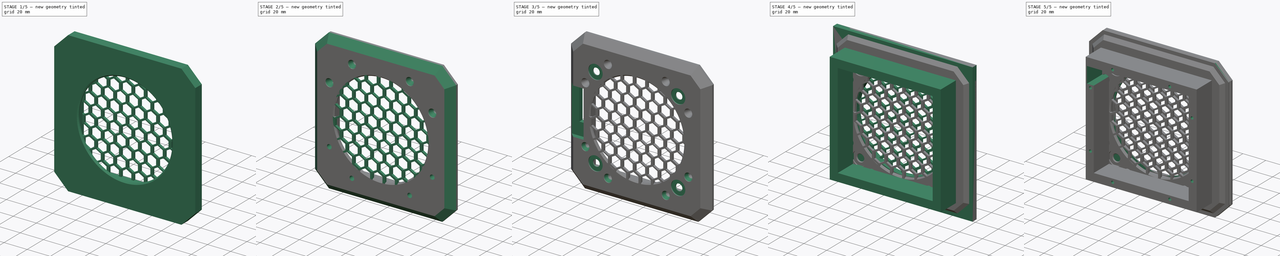
[diagram: build sequence overview — one tinted view per stage of 5, left to right]
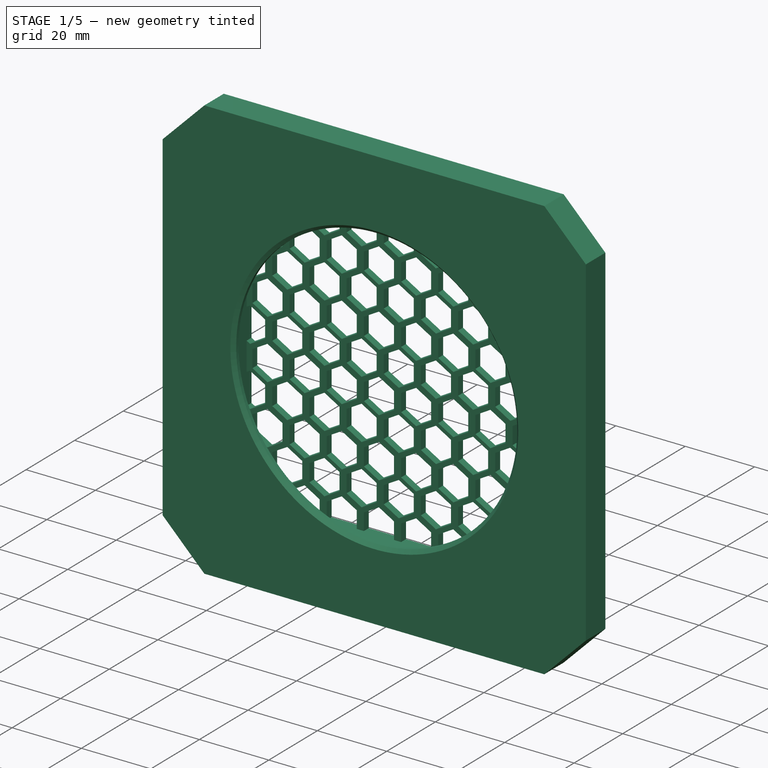
[diagram: stage 1 of 5 — iso view after this stage's code; geometry added in this stage tinted green]
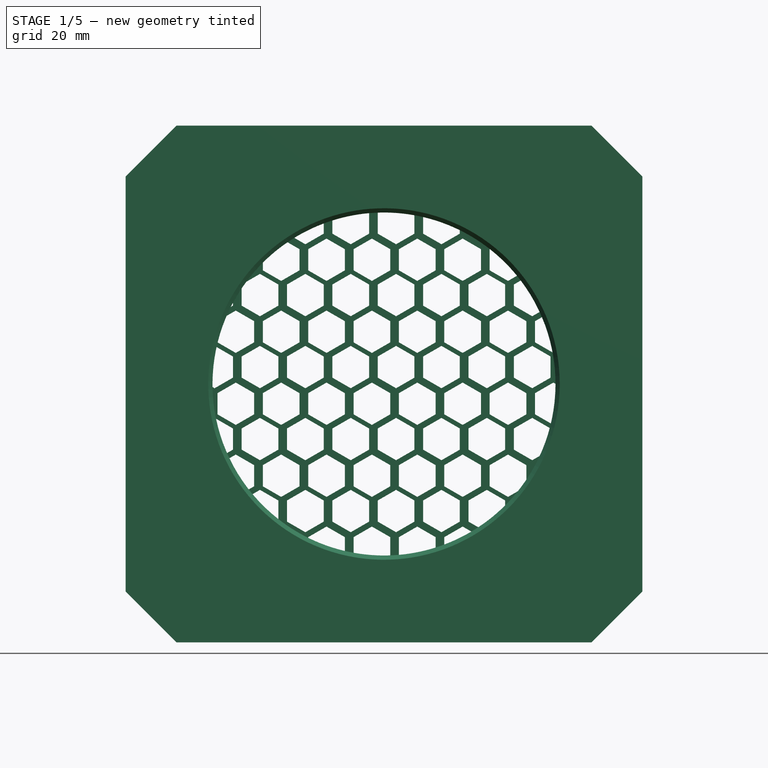
[diagram: stage 1 of 5 — front view after this stage's code; geometry added in this stage tinted green]
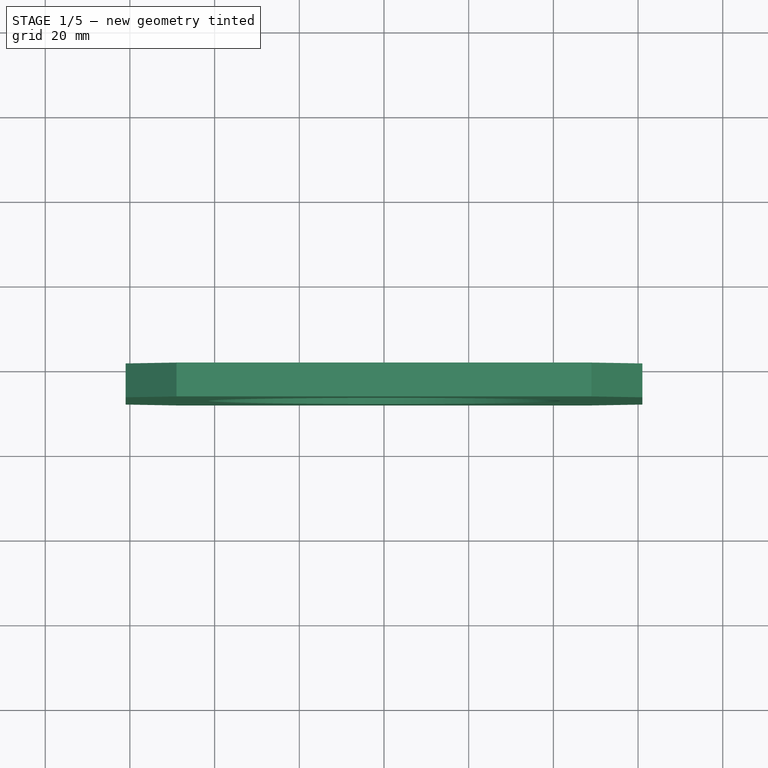
[diagram: stage 1 of 5 — top view after this stage's code; geometry added in this stage tinted green]
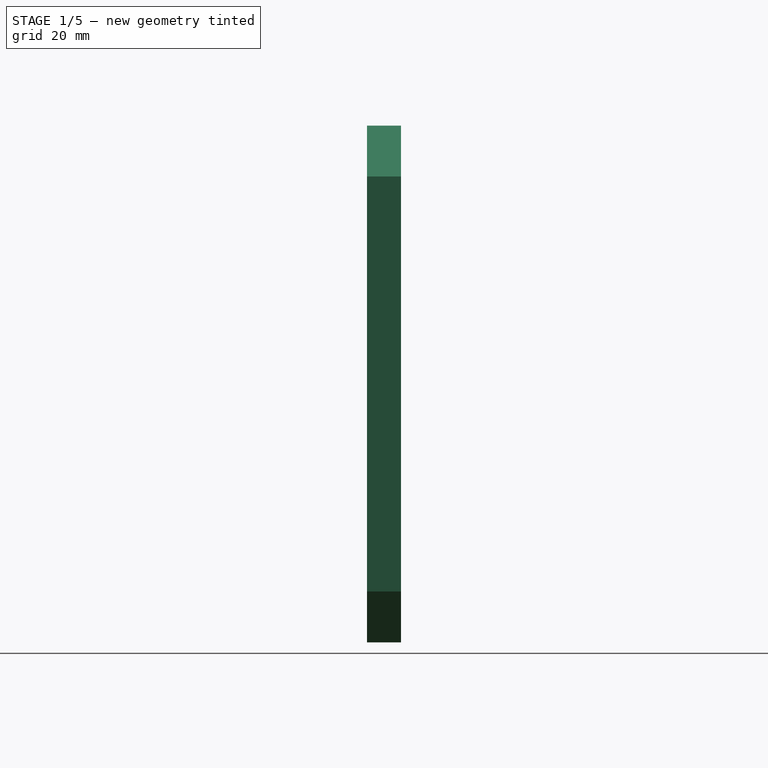
[diagram: stage 1 of 5 — right view after this stage's code; geometry added in this stage tinted green]
FCSTD DOCUMENT  (FreeCAD 1.0R39109 (Git))
Label: InnenLüfter
License: All rights reserved
LicenseURL: http://en.wikipedia.org/wiki/All_rights_reserved
objects: Sketcher::SketchObject×17, PartDesign::Chamfer×15, PartDesign::Pocket×11, PartDesign::Pad×6, PartDesign::LinearPattern×4, PartDesign::Body×4, PartDesign::MultiTransform×2, PartDesign::Boolean×2
note: 150 computed .brp shape members not serialized (recipe doc carries the construction recipe); baked Part::Feature solids carry a one-line shape summary decoded from their .brp

FEATURE [Sketcher::SketchObject] Sketch007
  ArcFitTolerance = 1e-06
  AttachmentSupport = -> [XZ_Plane002]
  FullyConstrained = true
  MakeInternals = false
  MapMode = 5
  Placement = pos=(0,0,0) rot=(1,0,0;1.5708rad)
  sketch-geometry (10):
    g0: LineSegment StartX=-41 StartY=41 StartZ=0 EndX=-41 EndY=-41 EndZ=0
    g1: LineSegment StartX=-41 StartY=-41 StartZ=0 EndX=41 EndY=-41 EndZ=0
    g2: LineSegment StartX=41 StartY=-41 StartZ=0 EndX=41 EndY=41 EndZ=0
    g3: LineSegment StartX=41 StartY=41 StartZ=0 EndX=-41 EndY=41 EndZ=0
    g4: GeomPoint [constr] X=0 Y=3e-16 Z=0
    g5: LineSegment StartX=-61 StartY=61 StartZ=0 EndX=-61 EndY=-61 EndZ=0
    g6: LineSegment StartX=-61 StartY=-61 StartZ=0 EndX=61 EndY=-61 EndZ=0
    g7: LineSegment StartX=61 StartY=-61 StartZ=0 EndX=61 EndY=61 EndZ=0
    g8: LineSegment StartX=61 StartY=61 StartZ=0 EndX=-61 EndY=61 EndZ=0
    g9: GeomPoint [constr] X=0 Y=3e-16 Z=0
  constraints (24):
    c: Coincident(g0,g1)
    c: Coincident(g1,g2)
    c: Coincident(g2,g3)
    c: Coincident(g3,g0)
    c: Vertical(g0)
    c: Vertical(g2)
    c: Horizontal(g1)
    c: Horizontal(g3)
    c: Symmetric(g2,g0,g4)
    c: Coincident(g4,g-1)
    c: Coincident(g5,g6)
    c: Coincident(g6,g7)
    c: Coincident(g7,g8)
    c: Coincident(g8,g5)
    c: Vertical(g5)
    c: Vertical(g7)
    c: Horizontal(g6)
    c: Horizontal(g8)
    c: Symmetric(g7,g5,g9)
    c: Coincident(g9,g4)
    c: DistanceX(g1,g1) = 82
    c: DistanceY(g2,g2) = 82
    c: DistanceX(g8,g8) = 122
    c: DistanceY(g5,g5) = 122
FEATURE [PartDesign::Pad] Pad003
  Direction = (0,-1,2e-16)
  Length = 8
  Length2 = 10
  Placement = pos=(0,0,0) rot=(1,0,0;1.5708rad)
  Profile = -> Sketch007
  ReferenceAxis = -> Sketch007 [N_Axis]
  Suppressed = false
  Type = 0
FEATURE [Sketcher::SketchObject] Sketch008
  ArcFitTolerance = 1e-06
  AttachmentSupport = -> [Pad003]
  FullyConstrained = true
  MakeInternals = false
  MapMode = 5
  Placement = pos=(0,-8,0) rot=(1,0,0;1.5708rad)
  sketch-geometry (6):
    g0: LineSegment StartX=-41 StartY=41 StartZ=0 EndX=-41 EndY=-41 EndZ=0
    g1: LineSegment StartX=-41 StartY=-41 StartZ=0 EndX=41 EndY=-41 EndZ=0
    g2: LineSegment StartX=41 StartY=-41 StartZ=0 EndX=41 EndY=41 EndZ=0
    g3: LineSegment StartX=41 StartY=41 StartZ=0 EndX=-41 EndY=41 EndZ=0
    g4: GeomPoint [constr] X=0 Y=0 Z=0
    g5: Circle CenterX=0 CenterY=0 CenterZ=0 NormalX=0 NormalY=0 NormalZ=1 AngleXU=0 Radius=40.5
  constraints (14):
    c: Coincident(g0,g1)
    c: Coincident(g1,g2)
    c: Coincident(g2,g3)
    c: Coincident(g3,g0)
    c: Vertical(g0)
    c: Vertical(g2)
    c: Horizontal(g1)
    c: Horizontal(g3)
    c: Symmetric(g2,g0,g4)
    c: Coincident(g4,g-1)
    c: DistanceX(g3,g3) = 82
    c: DistanceY(g0,g0) = 82
    c: Coincident(g5,g4)
    c: Diameter(g5) = 81
FEATURE [PartDesign::Pad] Pad004
  BaseFeature = -> Pad003
  Direction = (0,-1,2e-16)
  Length = 2
  Length2 = 10
  Placement = pos=(0,0,0) rot=(1,0,0;1.5708rad)
  Profile = -> Sketch008
  ReferenceAxis = -> Sketch008 [N_Axis]
  Reversed = true
  Suppressed = false
  Type = 0
FEATURE [PartDesign::Chamfer] Chamfer004
  Angle = 45
  Base = -> Pad004 [Edge29]
  BaseFeature = -> Pad004
  ChamferType = 0
  FlipDirection = false
  Placement = pos=(0,0,0) rot=(1,0,0;1.5708rad)
  Size = 1
  Size2 = 1
  SupportTransform = false
  Suppressed = false
  UseAllEdges = false
FEATURE [PartDesign::Chamfer] Chamfer005
  Angle = 45
  Base = -> Chamfer004 [Edge36,Edge41,Edge39,Edge37]
  BaseFeature = -> Chamfer004
  ChamferType = 0
  FlipDirection = false
  Placement = pos=(0,0,0) rot=(1,0,0;1.5708rad)
  Size = 12
  Size2 = 1
  SupportTransform = false
  Suppressed = false
  UseAllEdges = false
FEATURE [Sketcher::SketchObject] Sketch009
  ArcFitTolerance = 1e-06
  AttachmentSupport = -> [XZ_Plane003]
  FullyConstrained = true
  MakeInternals = false
  MapMode = 5
  Placement = pos=(0,0,0) rot=(1,0,0;1.5708rad)
  sketch-geometry (5):
    g0: LineSegment StartX=-45 StartY=45 StartZ=0 EndX=-45 EndY=-45 EndZ=0
    g1: LineSegment StartX=-45 StartY=-45 StartZ=0 EndX=45 EndY=-45 EndZ=0
    g2: LineSegment StartX=45 StartY=-45 StartZ=0 EndX=45 EndY=45 EndZ=0
    g3: LineSegment StartX=45 StartY=45 StartZ=0 EndX=-45 EndY=45 EndZ=0
    g4: GeomPoint [constr] X=0 Y=0 Z=0
  constraints (12):
    c: Coincident(g0,g1)
    c: Coincident(g1,g2)
    c: Coincident(g2,g3)
    c: Coincident(g3,g0)
    c: Vertical(g0)
    c: Vertical(g2)
    c: Horizontal(g1)
    c: Horizontal(g3)
    c: Symmetric(g2,g0,g4)
    c: Coincident(g4,g-1)
    c: DistanceX(g3,g3) = 90
    c: DistanceY(g0,g0) = 90
FEATURE [PartDesign::Pad] Pad005
  Direction = (0,-1,2e-16)
  Length = 2
  Length2 = 10
  Placement = pos=(0,0,0) rot=(1,0,0;1.5708rad)
  Profile = -> Sketch009
  ReferenceAxis = -> Sketch009 [N_Axis]
  Suppressed = false
  Type = 0
FEATURE [Sketcher::SketchObject] Sketch010
  ArcFitTolerance = 1e-06
  AttachmentSupport = -> [Pad005]
  FullyConstrained = false
  MakeInternals = false
  MapMode = 5
  Placement = pos=(0,-2,0) rot=(1,0,0;1.5708rad)
  sketch-geometry (16):
    g0: LineSegment StartX=-35.6699 StartY=35.5 StartZ=0 EndX=-35.6699 EndY=40.5 EndZ=0
    g1: LineSegment StartX=-35.6699 StartY=40.5 StartZ=0 EndX=-40 EndY=43 EndZ=0
    g2: LineSegment StartX=-40 StartY=43 StartZ=0 EndX=-44.3301 EndY=40.5 EndZ=0
    g3: LineSegment StartX=-44.3301 StartY=40.5 StartZ=0 EndX=-44.3301 EndY=35.5 EndZ=0
    g4: LineSegment StartX=-44.3301 StartY=35.5 StartZ=0 EndX=-40 EndY=33 EndZ=0
    g5: LineSegment StartX=-40 StartY=33 StartZ=0 EndX=-35.6699 EndY=35.5 EndZ=0
    g6: Circle [constr] CenterX=-40 CenterY=38 CenterZ=0 NormalX=0 NormalY=0 NormalZ=1 AngleXU=0 Radius=5
    g7: LineSegment [constr] StartX=-40 StartY=38 StartZ=0 EndX=-9.61979 EndY=38 EndZ=0
    g8: LineSegment [constr] StartX=-40 StartY=38 StartZ=0 EndX=-35 EndY=29.3397 EndZ=0
    g9: LineSegment StartX=-35 StartY=24.3397 StartZ=0 EndX=-30.6699 EndY=26.8397 EndZ=0
    g10: LineSegment StartX=-30.6699 StartY=26.8397 StartZ=0 EndX=-30.6699 EndY=31.8397 EndZ=0
    g11: LineSegment StartX=-30.6699 StartY=31.8397 StartZ=0 EndX=-35 EndY=34.3397 EndZ=0
    g12: LineSegment StartX=-35 StartY=34.3397 StartZ=0 EndX=-39.3301 EndY=31.8397 EndZ=0
    g13: LineSegment StartX=-39.3301 StartY=31.8397 StartZ=0 EndX=-39.3301 EndY=26.8397 EndZ=0
    g14: LineSegment StartX=-39.3301 StartY=26.8397 StartZ=0 EndX=-35 EndY=24.3397 EndZ=0
    g15: Circle [constr] CenterX=-35 CenterY=29.3397 CenterZ=0 NormalX=0 NormalY=0 NormalZ=1 AngleXU=0 Radius=5
  constraints (38):
    c: Coincident(g0,g1)
    c: Coincident(g1,g2)
    c: Coincident(g2,g3)
    c: Coincident(g3,g4)
    c: Coincident(g4,g5)
    c: Coincident(g5,g0)
    c: Equal(g0, g1-g5) x5
    c: PointOnObject(g0,g6)
    c: PointOnObject(g1,g6)
    c: PointOnObject(g2,g6)
    c: PointOnObject(g3,g6)
    c: PointOnObject(g4,g6)
    c: PointOnObject(g5,g6)
    c: DistanceY(g4,g1) = 10
    c: Vertical(g0)
    c: Coincident(g7,g6)
    c: Horizontal(g7)
    c: Coincident(g8,g6)
    c: Angle(g8,g7) = 1.0472
    c: Distance(g8,g8) = 10
    c: Coincident(g9,g10)
    c: Coincident(g10,g11)
    c: Coincident(g11,g12)
    c: Coincident(g12,g13)
    c: Coincident(g13,g14)
    c: Coincident(g14,g9)
    c: Equal(g9, g10-g14) x5
    c: PointOnObject(g9,g15)
    c: PointOnObject(g10,g15)
    c: PointOnObject(g11,g15)
    c: PointOnObject(g12,g15)
    c: PointOnObject(g13,g15)
    c: PointOnObject(g14,g15)
    c: Coincident(g15,g8)
    c: DistanceY(g9,g11) = 10
    c: Parallel(g5,g12)
    c: Distance(g6,g-2) = 40
    c: Distance(g6,g-1) = 38
FEATURE [PartDesign::Pocket] Pocket004
  BaseFeature = -> Pad005
  Direction = (0,1,-2e-16)
  Length = 5
  Length2 = 5
  Placement = pos=(0,0,0) rot=(1,0,0;1.5708rad)
  Profile = -> Sketch010
  ReferenceAxis = -> Sketch010 [N_Axis]
  Suppressed = false
  Type = 1
FEATURE [PartDesign::LinearPattern] LinearPattern002
  Direction = -> Sketch010 [H_Axis]
  Length = 75
  Mode = 0
  Occurrences = 8
  Offset = 10.7143
  Placement = pos=(0,0,0) rot=(1,0,0;1.5708rad)
  Suppressed = false
  TransformMode = 0
FEATURE [PartDesign::LinearPattern] LinearPattern003
  Direction = -> Z_Axis003
  Length = 68
  Mode = 0
  Occurrences = 5
  Offset = 17
  Placement = pos=(0,0,0) rot=(1,0,0;1.5708rad)
  Reversed = true
  Suppressed = false
  TransformMode = 0
FEATURE [PartDesign::MultiTransform] MultiTransform001
  BaseFeature = -> Pocket004
  Originals = -> [Pocket004]
  Placement = pos=(0,0,0) rot=(1,0,0;1.5708rad)
  Suppressed = false
  TransformMode = 0
  Transformations = -> [LinearPattern002,LinearPattern003]
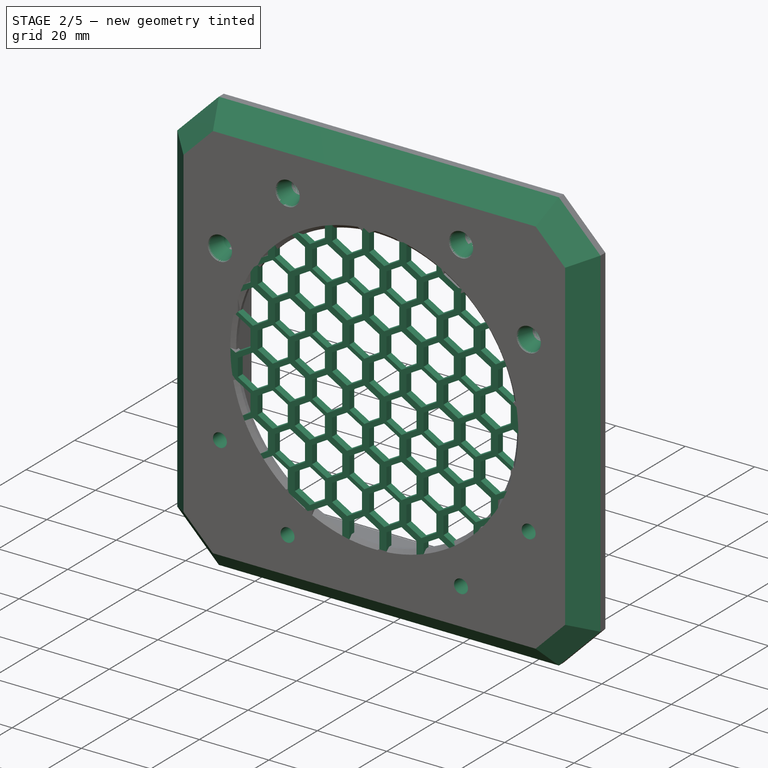
[diagram: stage 2 of 5 — iso view after this stage's code; geometry added in this stage tinted green]
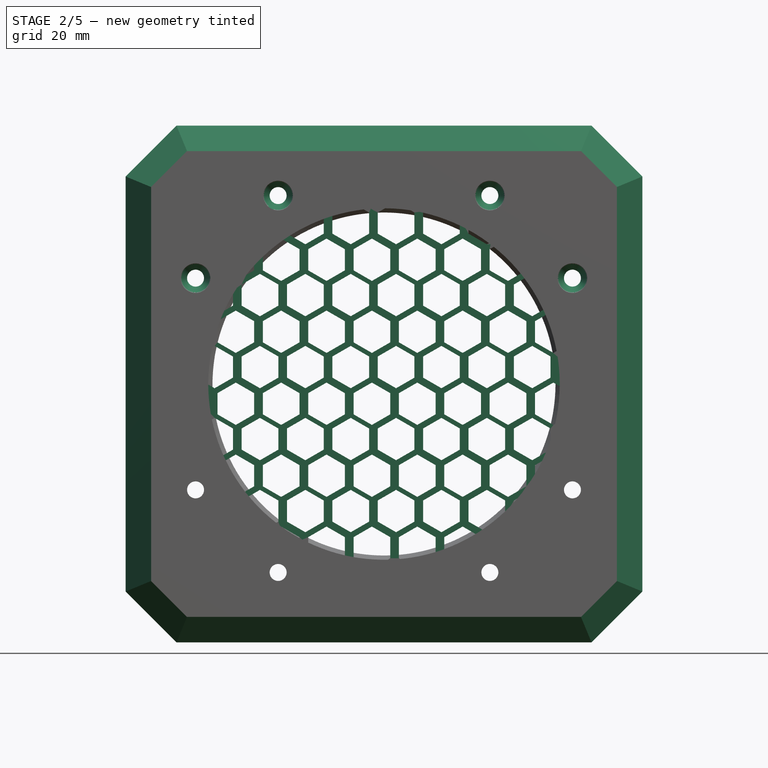
[diagram: stage 2 of 5 — front view after this stage's code; geometry added in this stage tinted green]
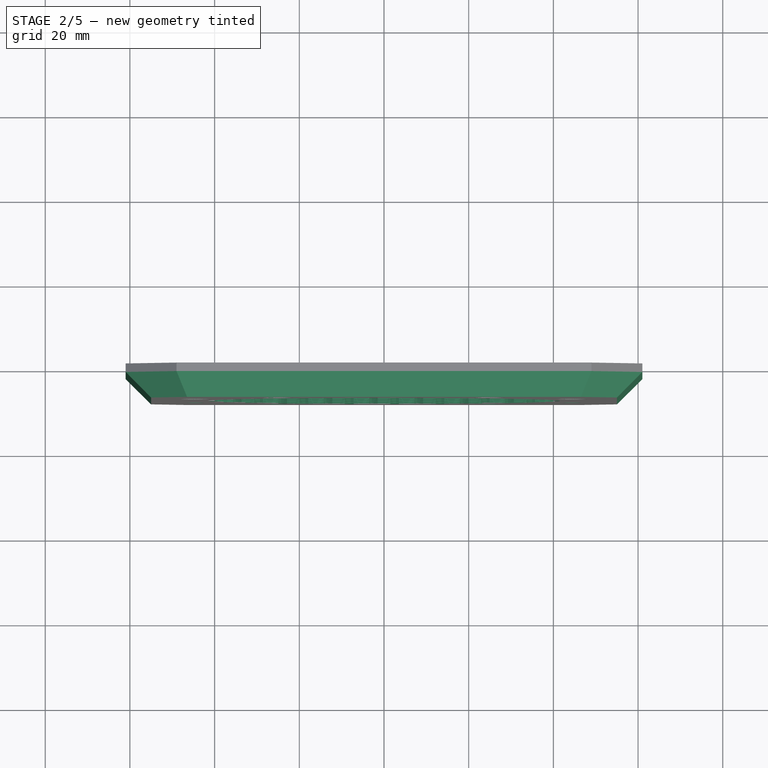
[diagram: stage 2 of 5 — top view after this stage's code; geometry added in this stage tinted green]
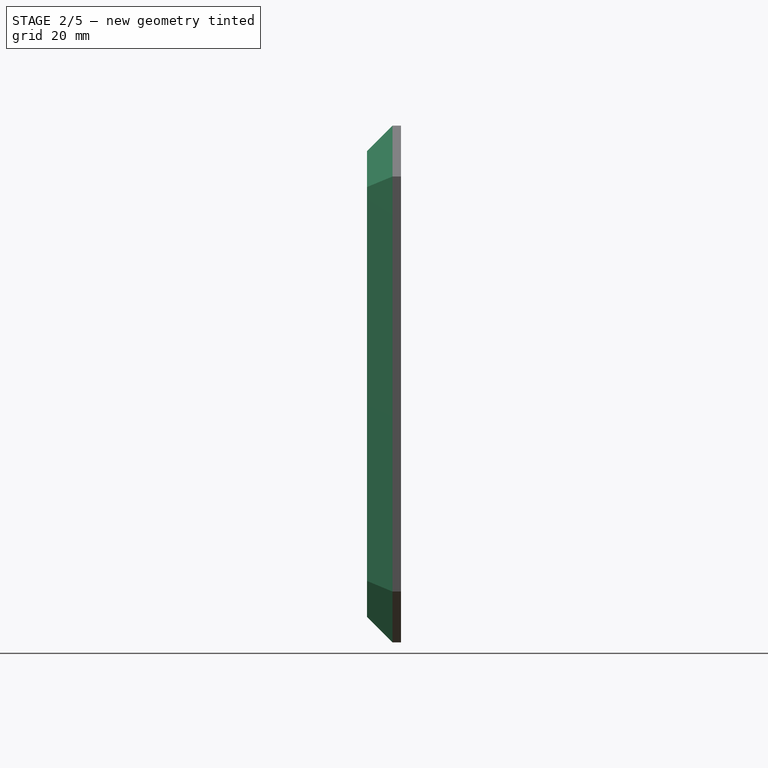
[diagram: stage 2 of 5 — right view after this stage's code; geometry added in this stage tinted green]
FEATURE [PartDesign::Chamfer] Chamfer006
  Angle = 45
  Base = -> Chamfer005 [Edge2,Edge4,Edge1,Edge3,Edge5,Edge7,Edge8,Edge6]
  BaseFeature = -> Chamfer005
  ChamferType = 0
  FlipDirection = false
  Placement = pos=(0,0,0) rot=(1,0,0;1.5708rad)
  Size = 6
  Size2 = 1
  SupportTransform = false
  Suppressed = false
  UseAllEdges = false
FEATURE [PartDesign::Body] Body003  label="Körper003"
  AllowCompound = false
  Group = -> [Sketch009,Pad005,Sketch010,Pocket004,MultiTransform001,LinearPattern002,LinearPattern003]
  Origin = -> Origin003
  Placement = pos=(0,-6,0) rot=(0,0,1;0rad)
  Tip = -> MultiTransform001
FEATURE [PartDesign::Boolean] Boolean001
  BaseFeature = -> Chamfer006
  Group = -> [Body003]
  Suppressed = false
  Type = 0
  UsePlacement = true
FEATURE [Sketcher::SketchObject] Sketch011
  ArcFitTolerance = 1e-06
  AttachmentSupport = -> [Boolean001]
  FullyConstrained = false
  MakeInternals = false
  MapMode = 5
  Placement = pos=(0,-8,0) rot=(1,0,0;1.5708rad)
  sketch-geometry (10):
    g0: Circle CenterX=-25 CenterY=44.5 CenterZ=0 NormalX=0 NormalY=0 NormalZ=1 AngleXU=0 Radius=2
    g1: Circle CenterX=25 CenterY=44.5 CenterZ=0 NormalX=0 NormalY=0 NormalZ=1 AngleXU=0 Radius=2
    g2: Circle CenterX=-44.5 CenterY=25 CenterZ=0 NormalX=0 NormalY=0 NormalZ=1 AngleXU=0 Radius=2
    g3: Circle CenterX=-44.5 CenterY=-25 CenterZ=0 NormalX=0 NormalY=0 NormalZ=1 AngleXU=0 Radius=2
    g4: Circle CenterX=-25 CenterY=-44.5 CenterZ=0 NormalX=0 NormalY=0 NormalZ=1 AngleXU=0 Radius=2
    g5: Circle CenterX=25 CenterY=-44.5 CenterZ=0 NormalX=0 NormalY=0 NormalZ=1 AngleXU=0 Radius=2
    g6: Circle CenterX=44.5 CenterY=25 CenterZ=0 NormalX=0 NormalY=0 NormalZ=1 AngleXU=0 Radius=2
    g7: Circle CenterX=44.5 CenterY=-25 CenterZ=0 NormalX=0 NormalY=0 NormalZ=1 AngleXU=0 Radius=2
    g8: LineSegment [constr] StartX=-68.7763 StartY=0 StartZ=0 EndX=99.3213 EndY=0 EndZ=0
    g9: LineSegment [constr] StartX=0 StartY=62.7277 StartZ=0 EndX=0 EndY=-84.2308 EndZ=0
  constraints (24):
    c: PointOnObject(g8,g-1)
    c: PointOnObject(g8,g-1)
    c: PointOnObject(g9,g-2)
    c: PointOnObject(g9,g-2)
    c: Symmetric(g2,g3,g8)
    c: Symmetric(g7,g6,g8)
    c: Symmetric(g0,g1,g9)
    c: Symmetric(g4,g5,g9)
    c: DistanceX(g4,g5) = 50
    c: DistanceY(g7,g6) = 50
    c: Distance(g1,g0) = 50
    c: Distance(g2,g3) = 50
    c: Distance(g3,g9) = 44.5
    c: Distance(g4,g8) = 44.5
    c: Distance(g7,g9) = 44.5
    c: Distance(g1,g8) = 44.5
    c: Equal(g0,g1)
    c: Equal(g1,g6)
    c: Equal(g6,g7)
    c: Equal(g7,g5)
    c: Equal(g5,g4)
    c: Equal(g4,g3)
    c: Equal(g3,g2)
    c: Diameter(g0) = 4
FEATURE [PartDesign::Pocket] Pocket005
  BaseFeature = -> Boolean001
  Direction = (0,1,-2e-16)
  Length = 5
  Length2 = 5
  Profile = -> Sketch011
  ReferenceAxis = -> Sketch011 [N_Axis]
  Suppressed = false
  Type = 1
FEATURE [PartDesign::Chamfer] Chamfer007
  Angle = 45
  Base = -> Pocket005 [Edge11,Edge59,Edge58,Edge57,Edge10]
  BaseFeature = -> Pocket005
  ChamferType = 1
  FlipDirection = false
  Size = 1.5
  Size2 = 4.5
  SupportTransform = false
  Suppressed = false
  UseAllEdges = false
FEATURE [PartDesign::Chamfer] Chamfer008
  Angle = 45
  Base = -> Chamfer007 [Edge5,Edge38,Edge48,Edge47,Edge36]
  BaseFeature = -> Chamfer007
  ChamferType = 1
  FlipDirection = false
  Size = 1.5
  Size2 = 4.5
  SupportTransform = false
  Suppressed = false
  UseAllEdges = false
FEATURE [PartDesign::Chamfer] Chamfer009
  Angle = 45
  Base = -> Chamfer008 [Edge6,Edge49,Edge51]
  BaseFeature = -> Chamfer008
  ChamferType = 1
  FlipDirection = false
  Size = 1.5
  Size2 = 4.5
  SupportTransform = false
  Suppressed = false
  UseAllEdges = false
FEATURE [PartDesign::Chamfer] Chamfer010
  Angle = 45
  Base = -> Chamfer009 [Edge58,Edge8,Edge80,Edge79,Edge60]
  BaseFeature = -> Chamfer009
  ChamferType = 1
  FlipDirection = false
  Size = 1.49
  Size2 = 4.5
  SupportTransform = false
  Suppressed = false
  UseAllEdges = false
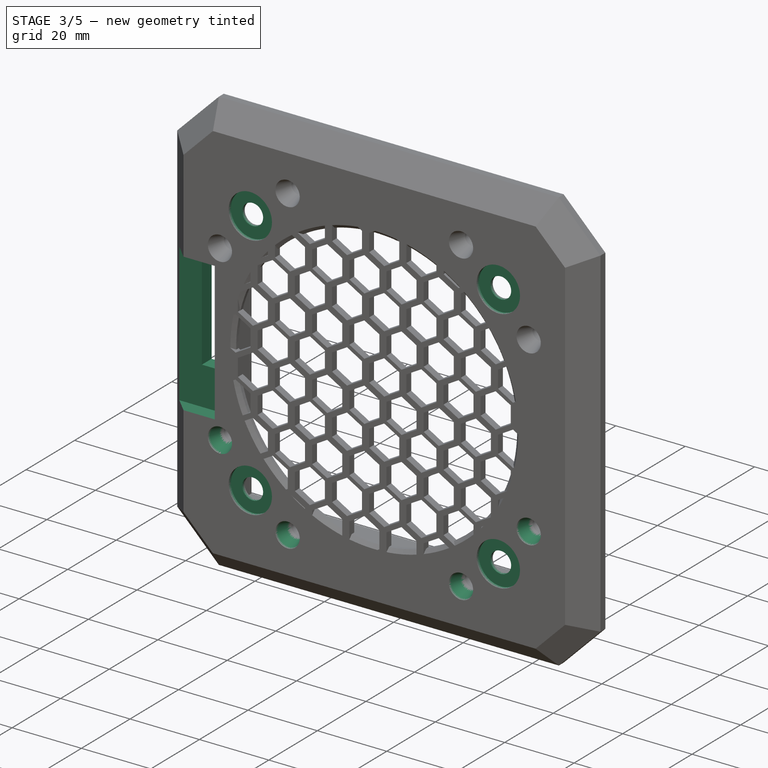
[diagram: stage 3 of 5 — iso view after this stage's code; geometry added in this stage tinted green]
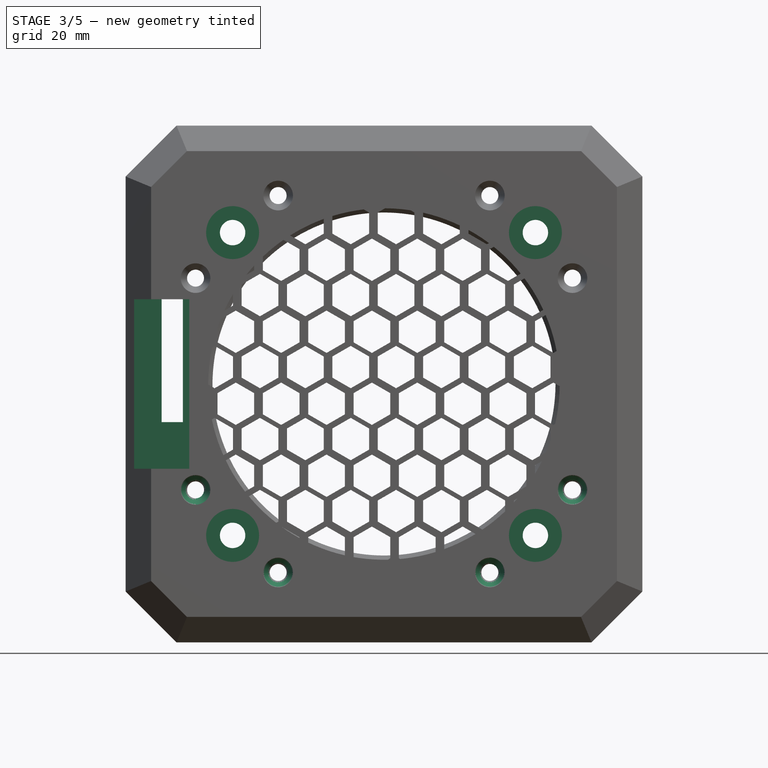
[diagram: stage 3 of 5 — front view after this stage's code; geometry added in this stage tinted green]
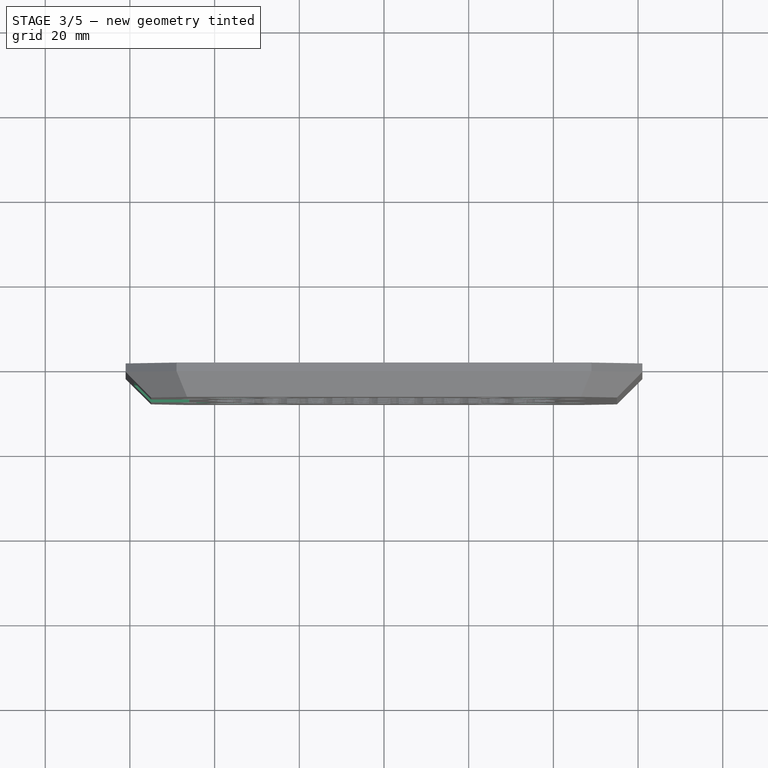
[diagram: stage 3 of 5 — top view after this stage's code; geometry added in this stage tinted green]
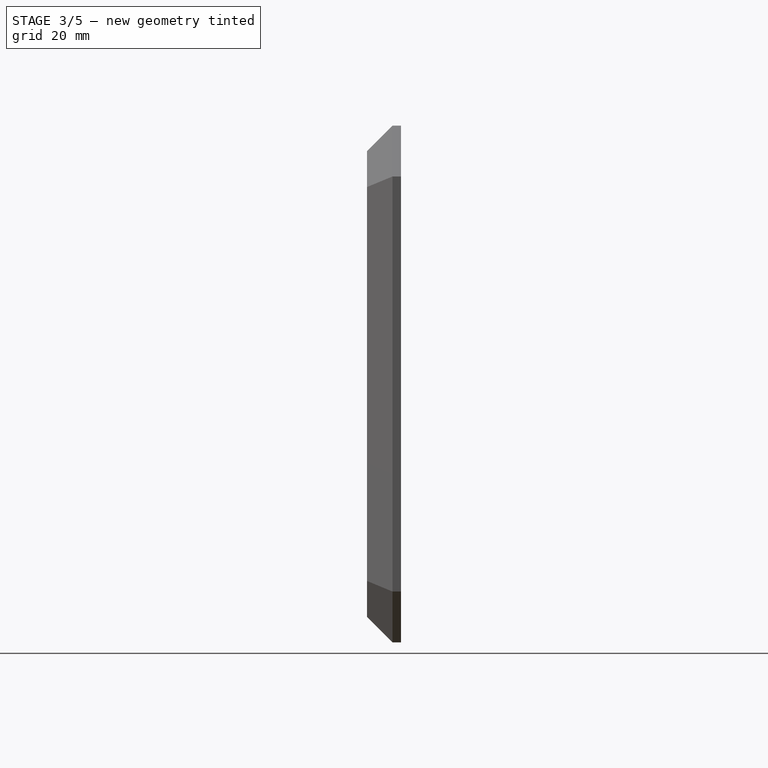
[diagram: stage 3 of 5 — right view after this stage's code; geometry added in this stage tinted green]
FEATURE [PartDesign::Chamfer] Chamfer011
  Angle = 45
  Base = -> Chamfer010 [Edge21,Edge22,Edge118,Edge175,Edge163]
  BaseFeature = -> Chamfer010
  ChamferType = 1
  FlipDirection = false
  Size = 1.5
  Size2 = 4.5
  SupportTransform = false
  Suppressed = false
  UseAllEdges = false
FEATURE [PartDesign::Chamfer] Chamfer012
  Angle = 45
  Base = -> Chamfer011 [Edge61,Edge10,Edge59]
  BaseFeature = -> Chamfer011
  ChamferType = 1
  FlipDirection = false
  Size = 1.5
  Size2 = 4.5
  SupportTransform = false
  Suppressed = false
  UseAllEdges = false
FEATURE [PartDesign::Chamfer] Chamfer013
  Angle = 45
  Base = -> Chamfer012 [Edge51,Edge49,Edge77,Edge76,Edge6]
  BaseFeature = -> Chamfer012
  ChamferType = 1
  FlipDirection = false
  Size = 1.5
  Size2 = 4.5
  SupportTransform = false
  Suppressed = false
  UseAllEdges = false
FEATURE [PartDesign::Chamfer] Chamfer014
  Angle = 45
  Base = -> Chamfer013 [Edge66,Edge64,Edge8]
  BaseFeature = -> Chamfer013
  ChamferType = 1
  FlipDirection = false
  Size = 1.5
  Size2 = 4.5
  SupportTransform = false
  Suppressed = false
  UseAllEdges = false
FEATURE [PartDesign::Body] Body  label="WandFutter"
  AllowCompound = false
  Group = -> [Sketch,Pad,Sketch001,Pad001,Sketch002,Pocket,Chamfer,Chamfer001,Chamfer002,Sketch003,Pocket001,Boolean,Sketch012,Pocket006]
  Origin = -> Origin
  Placement = pos=(0,27,0) rot=(0,0,1;0rad)
  Tip = -> Pocket006
FEATURE [Sketcher::SketchObject] Sketch013
  ArcFitTolerance = 1e-06
  AttachmentSupport = -> [Chamfer014]
  ExternalGeometry = -> [Chamfer014]
  FullyConstrained = true
  MakeInternals = false
  MapMode = 5
  Placement = pos=(0,0,0) rot=(0,0.707107,0.707107;3.14159rad)
  sketch-geometry (6):
    g0: LineSegment StartX=41 StartY=41 StartZ=0 EndX=52.5 EndY=41 EndZ=0
    g1: LineSegment StartX=52.5 StartY=41 StartZ=0 EndX=52.5 EndY=-9 EndZ=0
    g2: LineSegment StartX=52.5 StartY=-9 StartZ=0 EndX=47.5 EndY=-9 EndZ=0
    g3: LineSegment StartX=47.5 StartY=-9 StartZ=0 EndX=47.5 EndY=28 EndZ=0
    g4: LineSegment StartX=47.5 StartY=28 StartZ=0 EndX=41 EndY=28 EndZ=0
    g5: LineSegment StartX=41 StartY=28 StartZ=0 EndX=41 EndY=41 EndZ=0
  constraints (17):
    c: Coincident(g-3,g0)
    c: Horizontal(g0)
    c: Coincident(g0,g1)
    c: Vertical(g1)
    c: Coincident(g1,g2)
    c: Horizontal(g2)
    c: Coincident(g2,g3)
    c: Vertical(g3)
    c: Coincident(g3,g4)
    c: PointOnObject(g4,g-3)
    c: Coincident(g4,g5)
    c: Coincident(g5,g0)
    c: Horizontal(g4)
    c: Distance(g2,g2) = 5
    c: DistanceX(g0,g0) = 11.5
    c: DistanceY(g5,g5) = 13
    c: DistanceY(g1,g1) = 50
FEATURE [PartDesign::Pocket] Pocket007
  BaseFeature = -> Chamfer014
  Direction = (0,-1,2e-16)
  Length = 5
  Length2 = 5
  Profile = -> Sketch013
  ReferenceAxis = -> Sketch013 [N_Axis]
  Suppressed = false
  Type = 0
FEATURE [Sketcher::SketchObject] Sketch014
  ArcFitTolerance = 1e-06
  AttachmentSupport = -> [Pocket007]
  FullyConstrained = false
  MakeInternals = false
  MapMode = 5
  Placement = pos=(0,-8,0) rot=(1,0,0;1.5708rad)
  sketch-geometry (5):
    g0: LineSegment StartX=-61 StartY=20 StartZ=0 EndX=-61 EndY=-20 EndZ=0
    g1: LineSegment StartX=-61 StartY=-20 StartZ=0 EndX=-46 EndY=-20 EndZ=0
    g2: LineSegment StartX=-46 StartY=-20 StartZ=0 EndX=-46 EndY=20 EndZ=0
    g3: LineSegment StartX=-46 StartY=20 StartZ=0 EndX=-61 EndY=20 EndZ=0
    g4: LineSegment [constr] StartX=-104.583 StartY=0 StartZ=0 EndX=0 EndY=0 EndZ=0
  constraints (13):
    c: Coincident(g0,g1)
    c: Coincident(g1,g2)
    c: Coincident(g2,g3)
    c: Coincident(g3,g0)
    c: Vertical(g0)
    c: Vertical(g2)
    c: Horizontal(g1)
    c: Horizontal(g3)
    c: DistanceY(g0,g0) = 40
    c: Coincident(g4,g-1)
    c: Symmetric(g2,g1,g4)
    c: Distance(g3,g3) = 15
    c: Distance(g0,g-2) = 61
FEATURE [PartDesign::Pocket] Pocket008
  BaseFeature = -> Pocket007
  Direction = (0,1,-2e-16)
  Length = 4
  Length2 = 5
  Profile = -> Sketch014
  ReferenceAxis = -> Sketch014 [N_Axis]
  Suppressed = false
  Type = 0
FEATURE [Sketcher::SketchObject] Sketch015
  ArcFitTolerance = 1e-06
  AttachmentSupport = -> [Pocket008]
  FullyConstrained = false
  MakeInternals = false
  MapMode = 5
  Placement = pos=(0,-6,0) rot=(0,0.707107,0.707107;3.14159rad)
  sketch-geometry (7):
    g0: LineSegment [constr] StartX=0 StartY=0 StartZ=0 EndX=79.0866 EndY=0 EndZ=0
    g1: LineSegment [constr] StartX=0 StartY=0 StartZ=0 EndX=0 EndY=64.4894 EndZ=0
    g2: Circle CenterX=-35.75 CenterY=35.75 CenterZ=0 NormalX=0 NormalY=0 NormalZ=1 AngleXU=0 Radius=3
    g3: Circle CenterX=35.75 CenterY=35.75 CenterZ=0 NormalX=0 NormalY=0 NormalZ=1 AngleXU=0 Radius=3
    g4: Circle CenterX=35.75 CenterY=-35.75 CenterZ=0 NormalX=0 NormalY=0 NormalZ=1 AngleXU=0 Radius=3
    g5: Circle CenterX=-35.75 CenterY=-35.75 CenterZ=0 NormalX=0 NormalY=0 NormalZ=1 AngleXU=0 Radius=3
    g6: LineSegment [constr] StartX=0 StartY=0 StartZ=0 EndX=0 EndY=-68.1782 EndZ=0
  constraints (15):
    c: Coincident(g0,g-1)
    c: PointOnObject(g0,g-1)
    c: Coincident(g1,g0)
    c: PointOnObject(g1,g-2)
    c: Symmetric(g3,g4,g0)
    c: Symmetric(g2,g3,g1)
    c: Coincident(g6,g0)
    c: Vertical(g6)
    c: Symmetric(g5,g4,g6)
    c: DistanceY(g4,g3) = 71.5
    c: DistanceX(g5,g4) = 71.5
    c: Equal(g2,g3)
    c: Equal(g3,g4)
    c: Equal(g4,g5)
    c: Diameter(g2) = 6
FEATURE [PartDesign::Pocket] Pocket009
  BaseFeature = -> Pocket008
  Direction = (0,-1,2e-16)
  Length = 5
  Length2 = 5
  Profile = -> Sketch015
  ReferenceAxis = -> Sketch015 [N_Axis]
  Suppressed = false
  Type = 1
FEATURE [Sketcher::SketchObject] Sketch016
  ArcFitTolerance = 1e-06
  AttachmentSupport = -> [Pocket009]
  ExternalGeometry = -> [Pocket009]
  FullyConstrained = true
  MakeInternals = false
  MapMode = 5
  Placement = pos=(0,-8,0) rot=(1,0,0;1.5708rad)
  sketch-geometry (4):
    g0: Circle CenterX=-35.75 CenterY=35.75 CenterZ=0 NormalX=0 NormalY=0 NormalZ=1 AngleXU=0 Radius=6.25
    g1: Circle CenterX=35.75 CenterY=35.75 CenterZ=0 NormalX=0 NormalY=0 NormalZ=1 AngleXU=0 Radius=6.25
    g2: Circle CenterX=35.75 CenterY=-35.75 CenterZ=0 NormalX=0 NormalY=0 NormalZ=1 AngleXU=0 Radius=6.25
    g3: Circle CenterX=-35.75 CenterY=-35.75 CenterZ=0 NormalX=0 NormalY=0 NormalZ=1 AngleXU=0 Radius=6.25
  constraints (8):
    c: Coincident(g0,g-3)
    c: Coincident(g1,g-4)
    c: Coincident(g2,g-5)
    c: Coincident(g3,g-6)
    c: Equal(g0,g1)
    c: Equal(g1,g2)
    c: Equal(g2,g3)
    c: Diameter(g0) = 12.5
FEATURE [PartDesign::Pocket] Pocket010
  BaseFeature = -> Pocket009
  Direction = (0,1,-2e-16)
  Length = 1
  Length2 = 5
  Profile = -> Sketch016
  ReferenceAxis = -> Sketch016 [N_Axis]
  Suppressed = false
  Type = 0
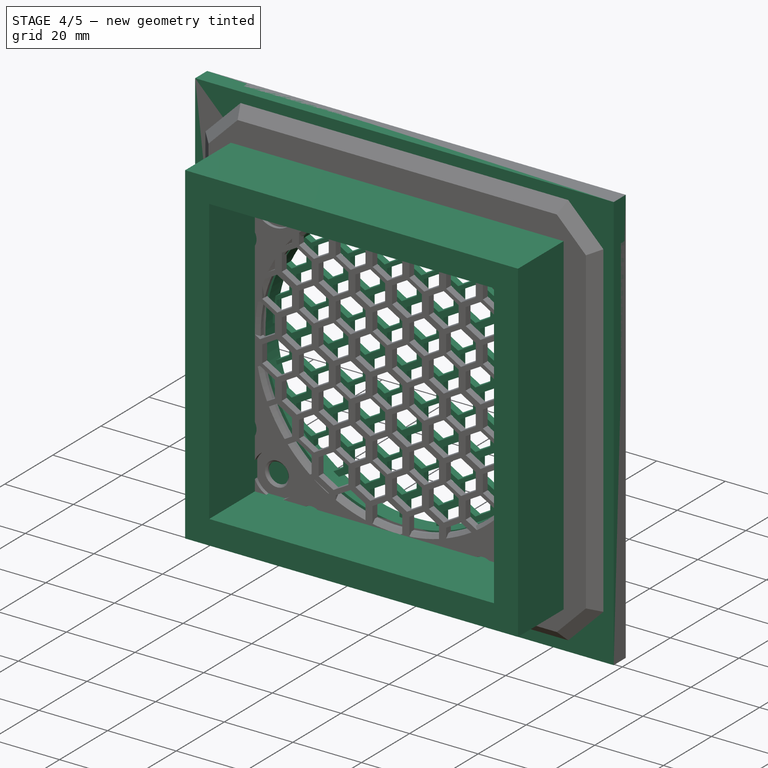
[diagram: stage 4 of 5 — iso view after this stage's code; geometry added in this stage tinted green]
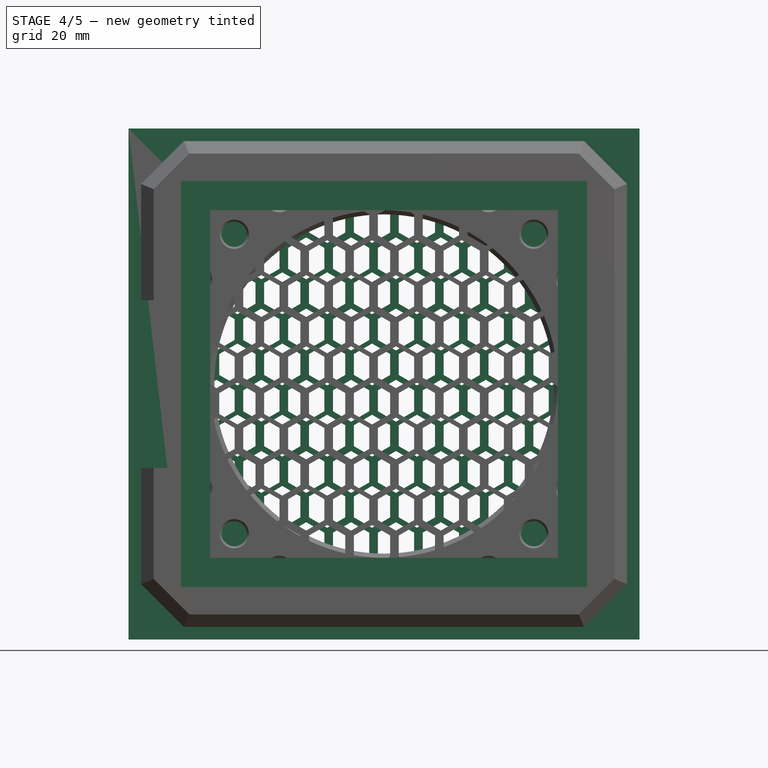
[diagram: stage 4 of 5 — front view after this stage's code; geometry added in this stage tinted green]
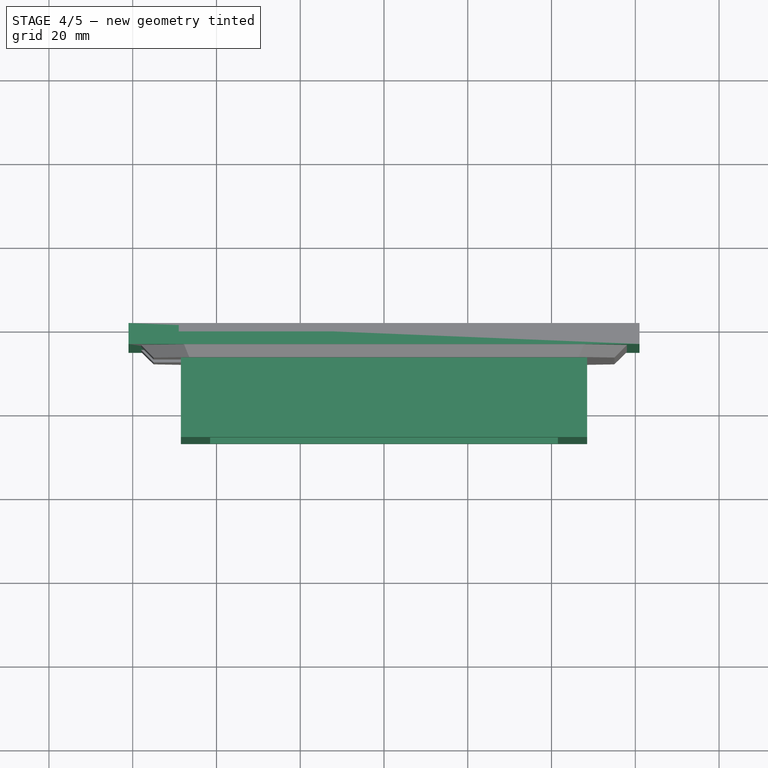
[diagram: stage 4 of 5 — top view after this stage's code; geometry added in this stage tinted green]
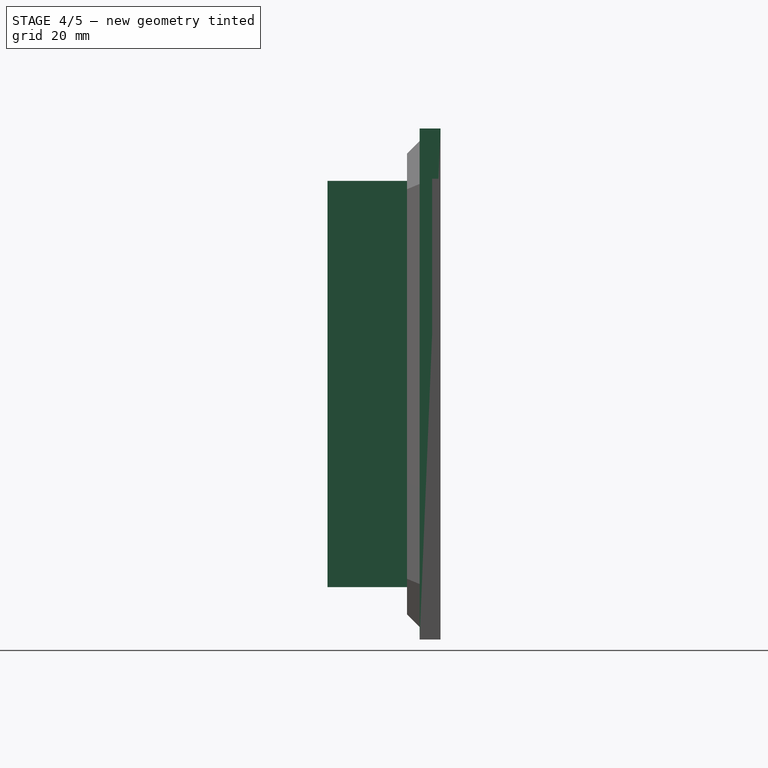
[diagram: stage 4 of 5 — right view after this stage's code; geometry added in this stage tinted green]
FEATURE [Sketcher::SketchObject] Sketch
  ArcFitTolerance = 1e-06
  AttachmentSupport = -> [XZ_Plane]
  FullyConstrained = false
  MakeInternals = false
  MapMode = 5
  Placement = pos=(0,0,0) rot=(1,0,0;1.5708rad)
  sketch-geometry (10):
    g0: GeomPoint [constr] X=-3e-16 Y=1e-16 Z=0
    g1: GeomPoint [constr] X=-3e-16 Y=1e-16 Z=0
    g2: LineSegment StartX=-61 StartY=61 StartZ=0 EndX=-61 EndY=-61 EndZ=0
    g3: LineSegment StartX=-61 StartY=-61 StartZ=0 EndX=61 EndY=-61 EndZ=0
    g4: LineSegment StartX=61 StartY=-61 StartZ=0 EndX=61 EndY=61 EndZ=0
    g5: LineSegment StartX=61 StartY=61 StartZ=0 EndX=-61 EndY=61 EndZ=0
    g6: GeomPoint [constr] X=-3e-16 Y=1e-16 Z=0
    g7: Circle CenterX=-3e-16 CenterY=1e-16 CenterZ=0 NormalX=0 NormalY=0 NormalZ=1 AngleXU=0 Radius=40.5
    g8: LineSegment [constr] StartX=0 StartY=71.7212 StartZ=0 EndX=0 EndY=-69.7412 EndZ=0
    g9: LineSegment [constr] StartX=-109.384 StartY=0 StartZ=0 EndX=109.384 EndY=0 EndZ=0
  constraints (20):
    c: Coincident(g0,g-1)
    c: Coincident(g1,g0)
    c: Coincident(g2,g3)
    c: Coincident(g3,g4)
    c: Coincident(g4,g5)
    c: Coincident(g5,g2)
    c: Vertical(g2)
    c: Vertical(g4)
    c: Horizontal(g3)
    c: Horizontal(g5)
    c: Symmetric(g4,g2,g6)
    c: Coincident(g6,g0)
    c: Coincident(g7,g0)
    c: PointOnObject(g8,g-2)
    c: PointOnObject(g8,g-2)
    c: PointOnObject(g9,g-1)
    c: PointOnObject(g9,g-1)
    c: Diameter(g7) = 81
    c: DistanceX(g5,g5) = 122
    c: DistanceY(g4,g4) = 122
FEATURE [PartDesign::Pad] Pad
  Direction = (0,-1,2e-16)
  Length = 5
  Length2 = 10
  Placement = pos=(0,0,0) rot=(1,0,0;1.5708rad)
  Profile = -> Sketch
  ReferenceAxis = -> Sketch [N_Axis]
  Suppressed = false
  Type = 0
FEATURE [Sketcher::SketchObject] Sketch001
  ArcFitTolerance = 1e-06
  AttachmentSupport = -> [Pad]
  FullyConstrained = true
  MakeInternals = false
  MapMode = 5
  Placement = pos=(0,-5,0) rot=(1,0,0;1.5708rad)
  sketch-geometry (10):
    g0: LineSegment StartX=-41.5 StartY=41.5 StartZ=0 EndX=-41.5 EndY=-41.5 EndZ=0
    g1: LineSegment StartX=-41.5 StartY=-41.5 StartZ=0 EndX=41.5 EndY=-41.5 EndZ=0
    g2: LineSegment StartX=41.5 StartY=-41.5 StartZ=0 EndX=41.5 EndY=41.5 EndZ=0
    g3: LineSegment StartX=41.5 StartY=41.5 StartZ=0 EndX=-41.5 EndY=41.5 EndZ=0
    g4: GeomPoint [constr] X=0 Y=0 Z=0
    g5: LineSegment StartX=-48.5 StartY=48.5 StartZ=0 EndX=-48.5 EndY=-48.5 EndZ=0
    g6: LineSegment StartX=-48.5 StartY=-48.5 StartZ=0 EndX=48.5 EndY=-48.5 EndZ=0
    g7: LineSegment StartX=48.5 StartY=-48.5 StartZ=0 EndX=48.5 EndY=48.5 EndZ=0
    g8: LineSegment StartX=48.5 StartY=48.5 StartZ=0 EndX=-48.5 EndY=48.5 EndZ=0
    g9: GeomPoint [constr] X=0 Y=0 Z=0
  constraints (24):
    c: Coincident(g0,g1)
    c: Coincident(g1,g2)
    c: Coincident(g2,g3)
    c: Coincident(g3,g0)
    c: Vertical(g0)
    c: Vertical(g2)
    c: Horizontal(g1)
    c: Horizontal(g3)
    c: Symmetric(g2,g0,g4)
    c: Coincident(g4,g-1)
    c: Coincident(g5,g6)
    c: Coincident(g6,g7)
    c: Coincident(g7,g8)
    c: Coincident(g8,g5)
    c: Vertical(g5)
    c: Vertical(g7)
    c: Horizontal(g6)
    c: Horizontal(g8)
    c: Symmetric(g7,g5,g9)
    c: Coincident(g9,g4)
    c: DistanceX(g3,g3) = 83
    c: DistanceY(g2,g2) = 83
    c: Distance(g2,g8) = 7
    c: Distance(g1,g7) = 7
FEATURE [PartDesign::Pad] Pad001
  BaseFeature = -> Pad
  Direction = (0,-1,2e-16)
  Length = 22
  Length2 = 10
  Placement = pos=(0,0,0) rot=(1,0,0;1.5708rad)
  Profile = -> Sketch001
  ReferenceAxis = -> Sketch001 [N_Axis]
  Suppressed = false
  Type = 0
FEATURE [Sketcher::SketchObject] Sketch004
  ArcFitTolerance = 1e-06
  AttachmentSupport = -> [XZ_Plane001]
  FullyConstrained = true
  MakeInternals = false
  MapMode = 5
  Placement = pos=(0,0,0) rot=(1,0,0;1.5708rad)
  sketch-geometry (5):
    g0: LineSegment StartX=-45 StartY=-45 StartZ=0 EndX=45 EndY=-45 EndZ=0
    g1: LineSegment StartX=45 StartY=-45 StartZ=0 EndX=45 EndY=45 EndZ=0
    g2: LineSegment StartX=45 StartY=45 StartZ=0 EndX=-45 EndY=45 EndZ=0
    g3: LineSegment StartX=-45 StartY=45 StartZ=0 EndX=-45 EndY=-45 EndZ=0
    g4: GeomPoint [constr] X=0 Y=0 Z=0
  constraints (12):
    c: Coincident(g0,g1)
    c: Coincident(g1,g2)
    c: Coincident(g2,g3)
    c: Coincident(g3,g0)
    c: Horizontal(g0)
    c: Horizontal(g2)
    c: Vertical(g1)
    c: Vertical(g3)
    c: Symmetric(g2,g0,g4)
    c: Distance(g1,g3) = 90
    c: Distance(g0,g2) = 90
    c: Coincident(g4,g-1)
FEATURE [PartDesign::Pad] Pad002
  Direction = (0,-1,2e-16)
  Length = 2
  Length2 = 10
  Placement = pos=(0,0,0) rot=(1,0,0;1.5708rad)
  Profile = -> Sketch004
  ReferenceAxis = -> Sketch004 [N_Axis]
  Suppressed = false
  Type = 0
FEATURE [Sketcher::SketchObject] Sketch005
  ArcFitTolerance = 1e-06
  AttachmentSupport = -> [Pad002]
  FullyConstrained = false
  MakeInternals = false
  MapMode = 5
  Placement = pos=(0,0,0) rot=(-1,0,0;1.5708rad)
  sketch-geometry (16):
    g0: LineSegment StartX=-40 StartY=33 StartZ=0 EndX=-35.6699 EndY=35.5 EndZ=0
    g1: LineSegment StartX=-35.6699 StartY=35.5 StartZ=0 EndX=-35.6699 EndY=40.5 EndZ=0
    g2: LineSegment StartX=-35.6699 StartY=40.5 StartZ=0 EndX=-40 EndY=43 EndZ=0
    g3: LineSegment StartX=-40 StartY=43 StartZ=0 EndX=-44.3301 EndY=40.5 EndZ=0
    g4: LineSegment StartX=-44.3301 StartY=40.5 StartZ=0 EndX=-44.3301 EndY=35.5 EndZ=0
    g5: LineSegment StartX=-44.3301 StartY=35.5 StartZ=0 EndX=-40 EndY=33 EndZ=0
    g6: Circle [constr] CenterX=-40 CenterY=38 CenterZ=0 NormalX=0 NormalY=0 NormalZ=1 AngleXU=0 Radius=5
    g7: LineSegment [constr] StartX=-40 StartY=38 StartZ=0 EndX=-10.283 EndY=38 EndZ=0
    g8: LineSegment [constr] StartX=-40 StartY=38 StartZ=0 EndX=-35 EndY=29.3397 EndZ=0
    g9: LineSegment StartX=-35 StartY=24.3397 StartZ=0 EndX=-30.6699 EndY=26.8397 EndZ=0
    g10: LineSegment StartX=-30.6699 StartY=26.8397 StartZ=0 EndX=-30.6699 EndY=31.8397 EndZ=0
    g11: LineSegment StartX=-30.6699 StartY=31.8397 StartZ=0 EndX=-35 EndY=34.3397 EndZ=0
    g12: LineSegment StartX=-35 StartY=34.3397 StartZ=0 EndX=-39.3301 EndY=31.8397 EndZ=0
    g13: LineSegment StartX=-39.3301 StartY=31.8397 StartZ=0 EndX=-39.3301 EndY=26.8397 EndZ=0
    g14: LineSegment StartX=-39.3301 StartY=26.8397 StartZ=0 EndX=-35 EndY=24.3397 EndZ=0
    g15: Circle [constr] CenterX=-35 CenterY=29.3397 CenterZ=0 NormalX=0 NormalY=0 NormalZ=1 AngleXU=0 Radius=5
  constraints (38):
    c: Coincident(g0,g1)
    c: Coincident(g1,g2)
    c: Coincident(g2,g3)
    c: Coincident(g3,g4)
    c: Coincident(g4,g5)
    c: Coincident(g5,g0)
    c: Equal(g0, g1-g5) x5
    c: PointOnObject(g0,g6)
    c: PointOnObject(g1,g6)
    c: PointOnObject(g2,g6)
    c: PointOnObject(g3,g6)
    c: PointOnObject(g4,g6)
    c: PointOnObject(g5,g6)
    c: Coincident(g7,g6)
    c: Horizontal(g7)
    c: Coincident(g8,g6)
    c: Vertical(g4)
    c: Angle(g8,g7) = 1.0472
    c: Distance(g8,g8) = 10
    c: Coincident(g9,g10)
    c: Coincident(g10,g11)
    c: Coincident(g11,g12)
    c: Coincident(g12,g13)
    c: Coincident(g13,g14)
    c: Coincident(g14,g9)
    c: Equal(g9, g10-g14) x5
    c: PointOnObject(g9,g15)
    c: PointOnObject(g10,g15)
    c: PointOnObject(g11,g15)
    c: PointOnObject(g12,g15)
    c: PointOnObject(g13,g15)
    c: PointOnObject(g14,g15)
    c: Coincident(g15,g8)
    c: DistanceY(g9,g11) = 10
    c: DistanceY(g0,g2) = 10
    c: Parallel(g12,g0)
    c: Distance(g6,g-2) = 40
    c: Distance(g6,g-1) = 38
FEATURE [PartDesign::Pocket] Pocket002
  BaseFeature = -> Pad002
  Direction = (0,-1,-2e-16)
  Length = 5
  Length2 = 5
  Placement = pos=(0,0,0) rot=(1,0,0;1.5708rad)
  Profile = -> Sketch005
  ReferenceAxis = -> Sketch005 [N_Axis]
  Suppressed = false
  Type = 1
FEATURE [PartDesign::LinearPattern] LinearPattern
  Direction = -> Sketch005 [H_Axis]
  Length = 75
  Mode = 0
  Occurrences = 8
  Offset = 10.7143
  Placement = pos=(0,0,0) rot=(1,0,0;1.5708rad)
  Suppressed = false
  TransformMode = 0
FEATURE [PartDesign::LinearPattern] LinearPattern001
  Direction = -> Z_Axis001
  Length = 68
  Mode = 0
  Occurrences = 5
  Offset = 17
  Placement = pos=(0,0,0) rot=(1,0,0;1.5708rad)
  Suppressed = false
  TransformMode = 0
FEATURE [PartDesign::MultiTransform] MultiTransform
  BaseFeature = -> Pocket002
  Originals = -> [Pocket002]
  Placement = pos=(0,0,0) rot=(1,0,0;1.5708rad)
  Suppressed = false
  TransformMode = 0
  Transformations = -> [LinearPattern,LinearPattern001]
FEATURE [PartDesign::Chamfer] Chamfer015
  Angle = 45
  Base = -> Pocket010 [Edge1791,Edge1778,Edge926,Edge1780]
  BaseFeature = -> Pocket010
  ChamferType = 0
  FlipDirection = false
  Size = 0.5
  Size2 = 1
  SupportTransform = false
  Suppressed = false
  UseAllEdges = false
FEATURE [Sketcher::SketchObject] Sketch017
  ArcFitTolerance = 1e-06
  AttachmentSupport = -> [Chamfer015]
  ExternalGeometry = -> [Chamfer015]
  FullyConstrained = false
  MakeInternals = false
  MapMode = 5
  Placement = pos=(0,-4,0) rot=(1,0,0;1.5708rad)
  sketch-geometry (3):
    g0: Circle CenterX=-56 CenterY=12.5 CenterZ=0 NormalX=0 NormalY=0 NormalZ=1 AngleXU=0 Radius=1.325
    g1: Circle CenterX=-56 CenterY=-12.5 CenterZ=0 NormalX=0 NormalY=0 NormalZ=1 AngleXU=0 Radius=1.325
    g2: LineSegment [constr] StartX=0 StartY=0 StartZ=0 EndX=-78.0742 EndY=0 EndZ=0
  constraints (7):
    c: Coincident(g2,g-1)
    c: PointOnObject(g2,g-1)
    c: Symmetric(g0,g1,g2)
    c: DistanceY(g1,g0) = 25
    c: Distance(g0,g-3) = 10
    c: Equal(g0,g1)
    c: Diameter(g0) = 2.65
FEATURE [PartDesign::Pocket] Pocket011
  BaseFeature = -> Chamfer015
  Direction = (0,1,-2e-16)
  Length = 5
  Length2 = 5
  Profile = -> Sketch017
  ReferenceAxis = -> Sketch017 [N_Axis]
  Suppressed = false
  Type = 1
FEATURE [PartDesign::Body] Body002  label="LüfterHalter"
  AllowCompound = false
  Group = -> [Sketch007,Pad003,Sketch008,Pad004,Chamfer004,Chamfer005,Chamfer006,Boolean001,Sketch011,Pocket005,Chamfer007,Chamfer008,Chamfer009,Chamfer010,Chamfer011,Chamfer012,Chamfer013,Chamfer014,Sketch013,Pocket007,Sketch014,Pocket008,Sketch015,Pocket009,Sketch016,Pocket010,Chamfer015,Sketch017,Pocket011]
  Origin = -> Origin002
  Tip = -> Pocket011
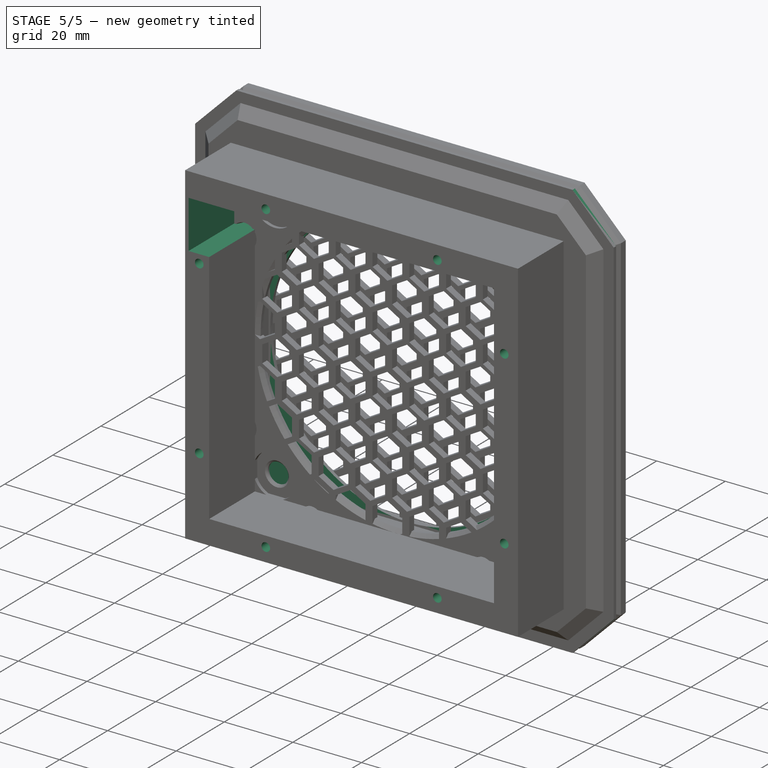
[diagram: stage 5 of 5 — iso view after this stage's code; geometry added in this stage tinted green]
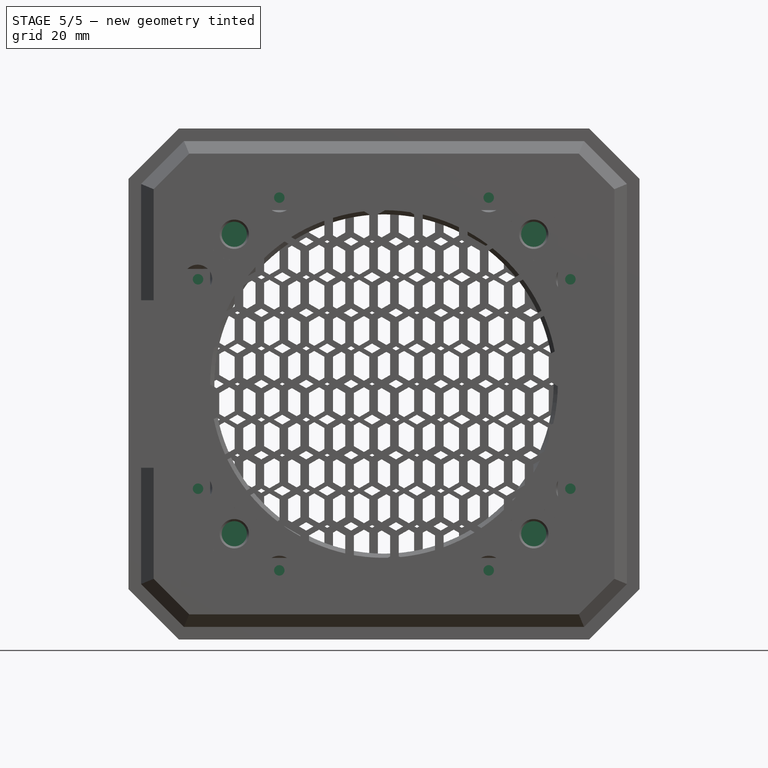
[diagram: stage 5 of 5 — front view after this stage's code; geometry added in this stage tinted green]
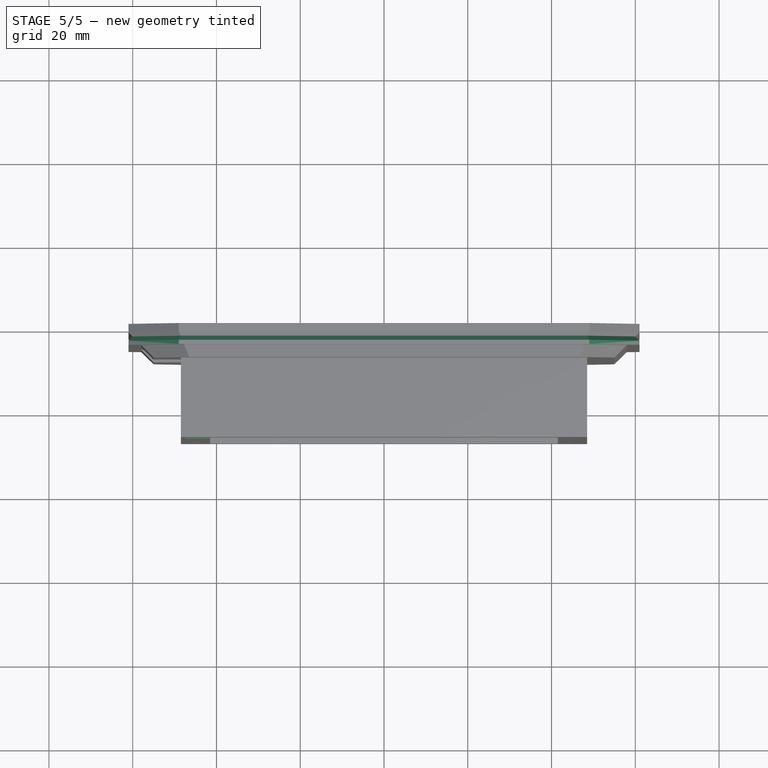
[diagram: stage 5 of 5 — top view after this stage's code; geometry added in this stage tinted green]
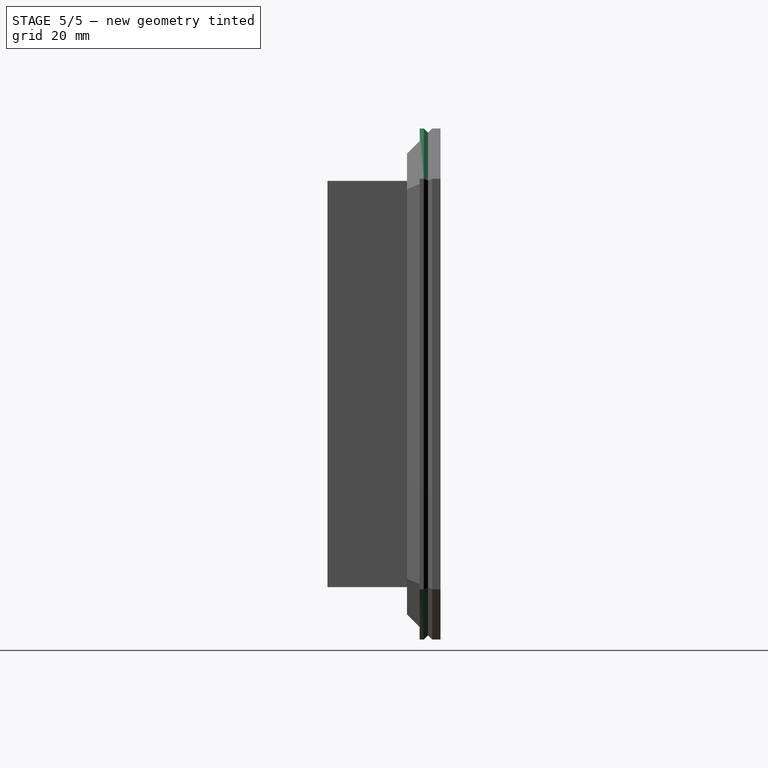
[diagram: stage 5 of 5 — right view after this stage's code; geometry added in this stage tinted green]
FEATURE [Sketcher::SketchObject] Sketch002
  ArcFitTolerance = 1e-06
  AttachmentSupport = -> [Pad001]
  FullyConstrained = true
  MakeInternals = false
  MapMode = 5
  Placement = pos=(0,-5,0) rot=(1,0,0;1.5708rad)
  sketch-geometry (6):
    g0: Circle CenterX=0 CenterY=0 CenterZ=0 NormalX=0 NormalY=0 NormalZ=1 AngleXU=0 Radius=40.5
    g1: LineSegment StartX=-41.5 StartY=41.5 StartZ=0 EndX=-41.5 EndY=-41.5 EndZ=0
    g2: LineSegment StartX=-41.5 StartY=-41.5 StartZ=0 EndX=41.5 EndY=-41.5 EndZ=0
    g3: LineSegment StartX=41.5 StartY=-41.5 StartZ=0 EndX=41.5 EndY=41.5 EndZ=0
    g4: LineSegment StartX=41.5 StartY=41.5 StartZ=0 EndX=-41.5 EndY=41.5 EndZ=0
    g5: GeomPoint [constr] X=0 Y=0 Z=0
  constraints (14):
    c: Coincident(g0,g-1)
    c: Coincident(g1,g2)
    c: Coincident(g2,g3)
    c: Coincident(g3,g4)
    c: Coincident(g4,g1)
    c: Vertical(g1)
    c: Vertical(g3)
    c: Horizontal(g2)
    c: Horizontal(g4)
    c: Symmetric(g3,g1,g5)
    c: Coincident(g5,g0)
    c: Diameter(g0) = 81
    c: DistanceY(g3,g3) = 83
    c: DistanceX(g4,g4) = 83
FEATURE [PartDesign::Pocket] Pocket
  BaseFeature = -> Pad001
  Direction = (0,1,-2e-16)
  Length = 2
  Length2 = 5
  Placement = pos=(0,0,0) rot=(1,0,0;1.5708rad)
  Profile = -> Sketch002
  ReferenceAxis = -> Sketch002 [N_Axis]
  Suppressed = false
  Type = 0
FEATURE [PartDesign::Chamfer] Chamfer
  Angle = 45
  Base = -> Pocket [Edge1,Edge2,Edge8,Edge5]
  BaseFeature = -> Pocket
  ChamferType = 0
  FlipDirection = false
  Placement = pos=(0,0,0) rot=(1,0,0;1.5708rad)
  Size = 12
  Size2 = 1
  SupportTransform = false
  Suppressed = false
  UseAllEdges = false
FEATURE [PartDesign::Chamfer] Chamfer001
  Angle = 45
  Base = -> Chamfer [Edge8,Edge10,Edge11,Edge9,Edge7,Edge5,Edge1,Edge6]
  BaseFeature = -> Chamfer
  ChamferType = 0
  FlipDirection = false
  Placement = pos=(0,0,0) rot=(1,0,0;1.5708rad)
  Size = 4
  Size2 = 1
  SupportTransform = false
  Suppressed = false
  UseAllEdges = false
FEATURE [PartDesign::Chamfer] Chamfer002
  Angle = 45
  Base = -> Chamfer001 [Edge33]
  BaseFeature = -> Chamfer001
  ChamferType = 0
  FlipDirection = false
  Placement = pos=(0,0,0) rot=(1,0,0;1.5708rad)
  Size = 2
  Size2 = 1
  SupportTransform = false
  Suppressed = false
  UseAllEdges = false
FEATURE [Sketcher::SketchObject] Sketch003
  ArcFitTolerance = 1e-06
  FullyConstrained = false
  MakeInternals = false
  MapMode = 5
  Placement = pos=(0,-27,0) rot=(1,0,0;1.5708rad)
  sketch-geometry (10):
    g0: Circle CenterX=-44.4 CenterY=25 CenterZ=0 NormalX=0 NormalY=0 NormalZ=1 AngleXU=0 Radius=1.25
    g1: Circle CenterX=-44.4 CenterY=-25 CenterZ=0 NormalX=0 NormalY=0 NormalZ=1 AngleXU=0 Radius=1.25
    g2: Circle CenterX=44.5 CenterY=25 CenterZ=0 NormalX=0 NormalY=0 NormalZ=1 AngleXU=0 Radius=1.25
    g3: Circle CenterX=44.5 CenterY=-25 CenterZ=0 NormalX=0 NormalY=0 NormalZ=1 AngleXU=0 Radius=1.25
    g4: Circle CenterX=-25 CenterY=-44.5 CenterZ=0 NormalX=0 NormalY=0 NormalZ=1 AngleXU=0 Radius=1.25
    g5: Circle CenterX=25 CenterY=-44.5 CenterZ=0 NormalX=0 NormalY=0 NormalZ=1 AngleXU=0 Radius=1.25
    g6: Circle CenterX=-25 CenterY=44.5 CenterZ=0 NormalX=0 NormalY=0 NormalZ=1 AngleXU=0 Radius=1.25
    g7: Circle CenterX=25 CenterY=44.5 CenterZ=0 NormalX=0 NormalY=0 NormalZ=1 AngleXU=0 Radius=1.25
    g8: LineSegment [constr] StartX=-73.9502 StartY=0 StartZ=0 EndX=109.638 EndY=0 EndZ=0
    g9: LineSegment [constr] StartX=0 StartY=72.7834 StartZ=0 EndX=0 EndY=-71.176 EndZ=0
  constraints (24):
    c: PointOnObject(g8,g-1)
    c: PointOnObject(g8,g-1)
    c: PointOnObject(g9,g-2)
    c: PointOnObject(g9,g-2)
    c: Symmetric(g6,g7,g9)
    c: Symmetric(g2,g3,g8)
    c: Symmetric(g5,g4,g9)
    c: Symmetric(g1,g0,g8)
    c: DistanceX(g6,g7) = 50
    c: DistanceY(g3,g2) = 50
    c: Distance(g4,g5) = 50
    c: DistanceY(g1,g0) = 50
    c: Equal(g6,g7)
    c: Equal(g7,g2)
    c: Equal(g2,g3)
    c: Equal(g3,g5)
    c: Equal(g5,g4)
    c: Equal(g4,g1)
    c: Equal(g1,g0)
    c: Distance(g7,g-4) = 3.5
    c: Distance(g2,g-5) = 3.5
    c: Distance(g5,g-6) = 3.5
    c: Distance(g1,g-3) = 3.4
    c: Diameter(g0) = 2.5
FEATURE [PartDesign::Pocket] Pocket001
  BaseFeature = -> Chamfer002
  Direction = (0,1,-2e-16)
  Length = 12
  Length2 = 5
  Placement = pos=(0,0,0) rot=(1,0,0;1.5708rad)
  Profile = -> Sketch003
  ReferenceAxis = -> Sketch003 [N_Axis]
  Suppressed = false
  Type = 0
FEATURE [PartDesign::Body] Body001  label="Körper001"
  AllowCompound = false
  Group = -> [Sketch004,Pad002,Sketch005,Pocket002,MultiTransform,LinearPattern,LinearPattern001]
  Origin = -> Origin001
  Tip = -> MultiTransform
FEATURE [PartDesign::Boolean] Boolean
  BaseFeature = -> Pocket001
  Group = -> [Body001]
  Suppressed = false
  Type = 0
  UsePlacement = true
FEATURE [Sketcher::SketchObject] Sketch012
  ArcFitTolerance = 1e-06
  AttachmentSupport = -> [Boolean]
  ExternalGeometry = -> [Boolean]
  FullyConstrained = true
  MakeInternals = false
  MapMode = 5
  Placement = pos=(0,-27,0) rot=(1,0,0;1.5708rad)
  sketch-geometry (4):
    g0: LineSegment StartX=-41.5 StartY=41.5 StartZ=0 EndX=-47.5 EndY=41.5 EndZ=0
    g1: LineSegment StartX=-47.5 StartY=41.5 StartZ=0 EndX=-47.5 EndY=27.5 EndZ=0
    g2: LineSegment StartX=-47.5 StartY=27.5 StartZ=0 EndX=-41.5 EndY=27.5 EndZ=0
    g3: LineSegment StartX=-41.5 StartY=27.5 StartZ=0 EndX=-41.5 EndY=41.5 EndZ=0
  constraints (11):
    c: Coincident(g0,g1)
    c: Coincident(g1,g2)
    c: Coincident(g2,g3)
    c: Coincident(g3,g0)
    c: Horizontal(g0)
    c: Horizontal(g2)
    c: Vertical(g1)
    c: Vertical(g3)
    c: Distance(g0,g0) = 6
    c: DistanceY(g1,g1) = 14
    c: Coincident(g0,g-3)
FEATURE [PartDesign::Pocket] Pocket006
  BaseFeature = -> Boolean
  Direction = (0,1,-2e-16)
  Length = 0
  Length2 = 5
  Profile = -> Sketch012
  ReferenceAxis = -> Sketch012 [N_Axis]
  Suppressed = false
  Type = 3
  UpToFace = -> Boolean [Face476]
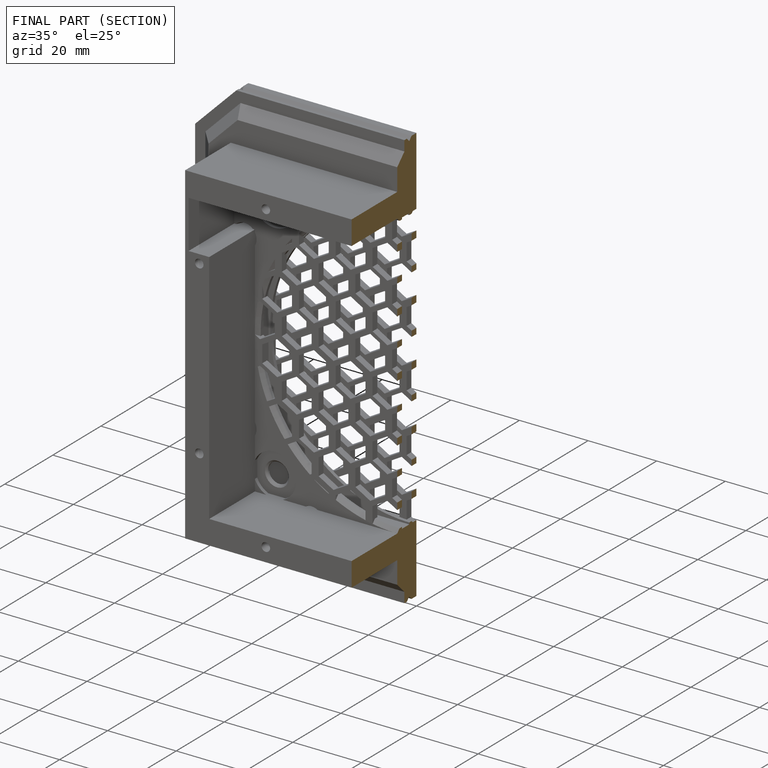
[diagram: finished part — half-section view (interior)]
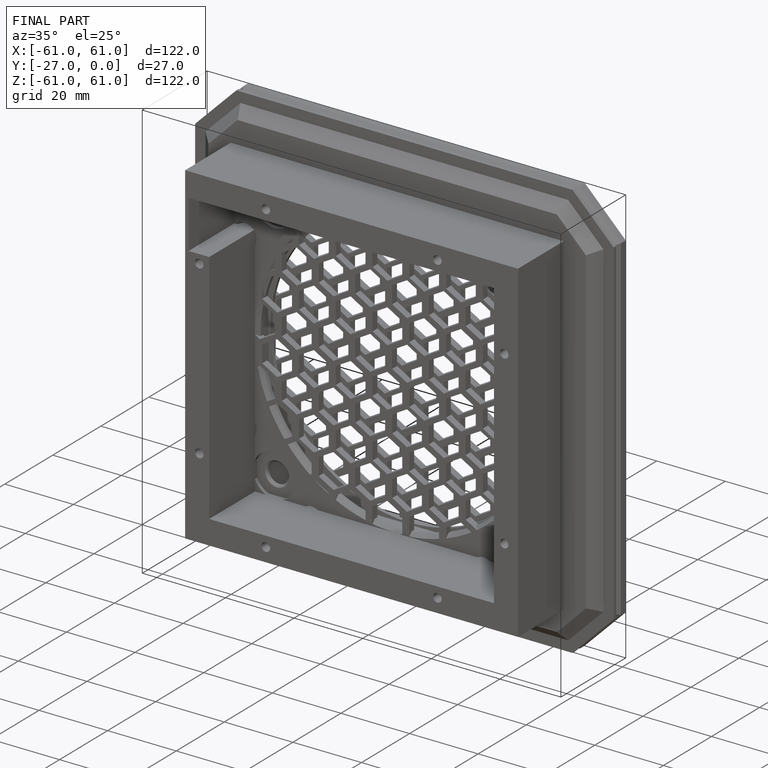
[diagram: finished part — iso view with bounding-box wireframe]
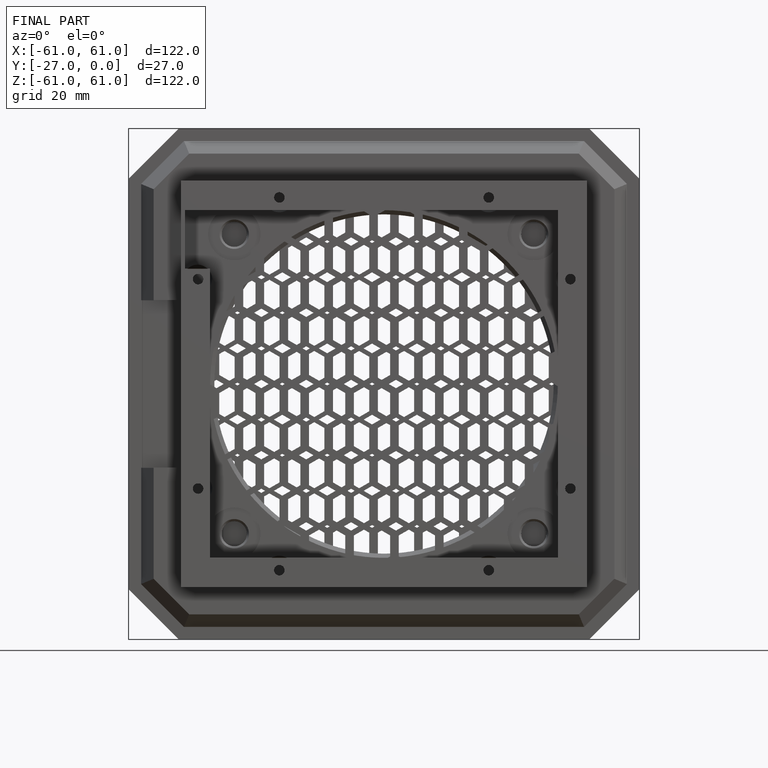
[diagram: finished part — front view with bounding-box wireframe]
